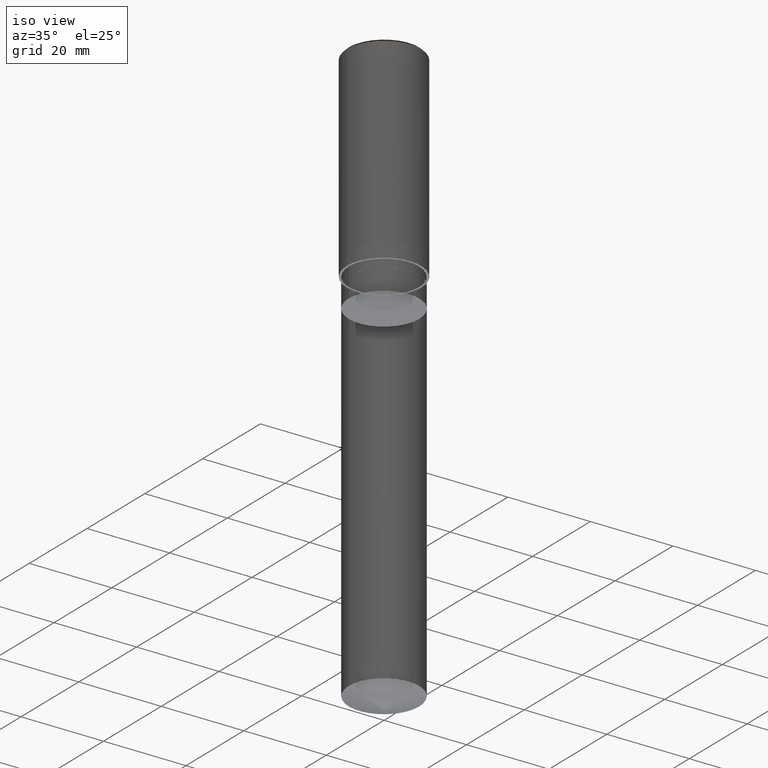
[diagram: clean part render]
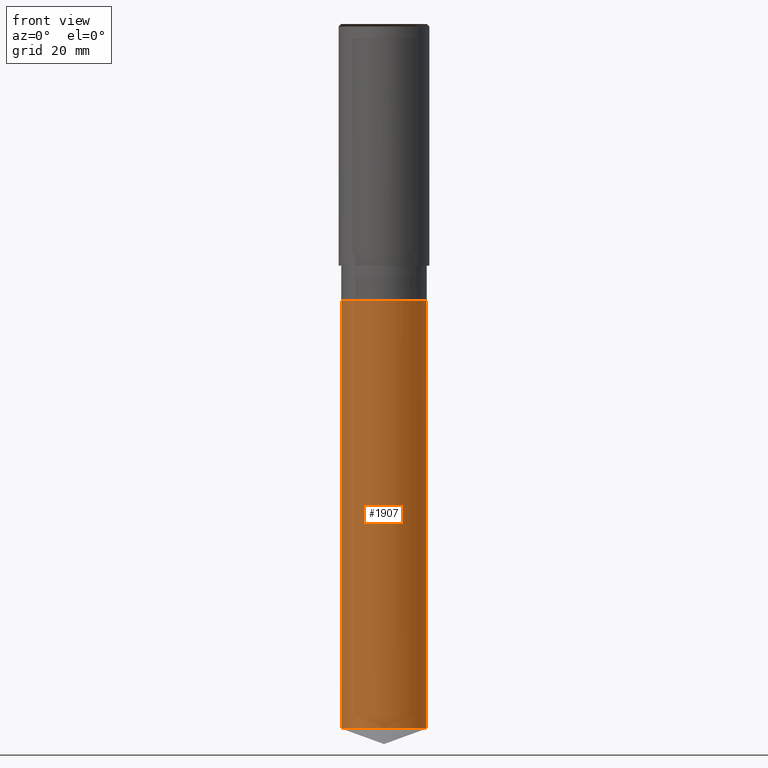
[diagram: tour spotlight — one face highlighted and labeled with its STEP entity id]
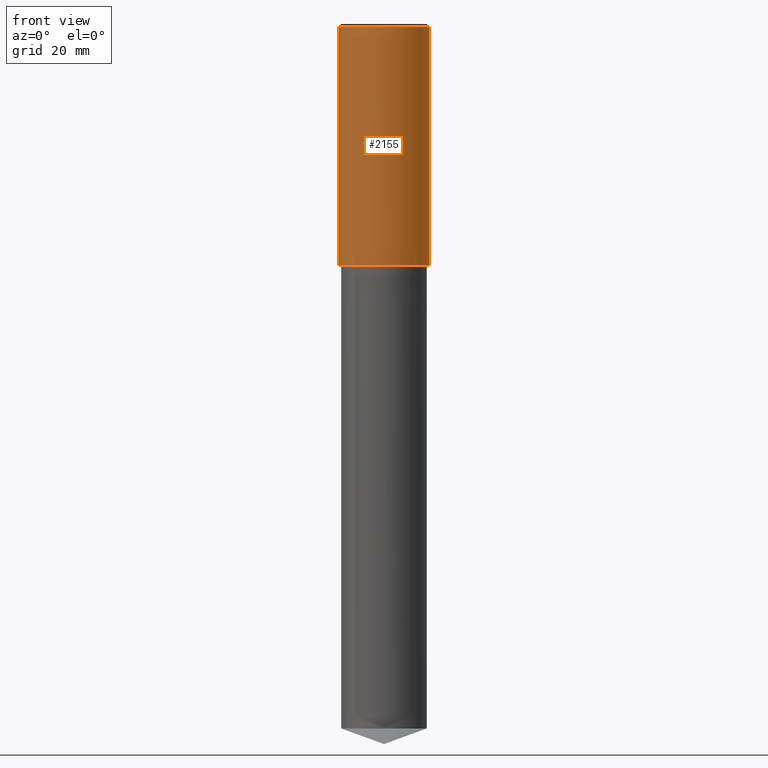
[diagram: tour spotlight — one face highlighted and labeled with its STEP entity id]
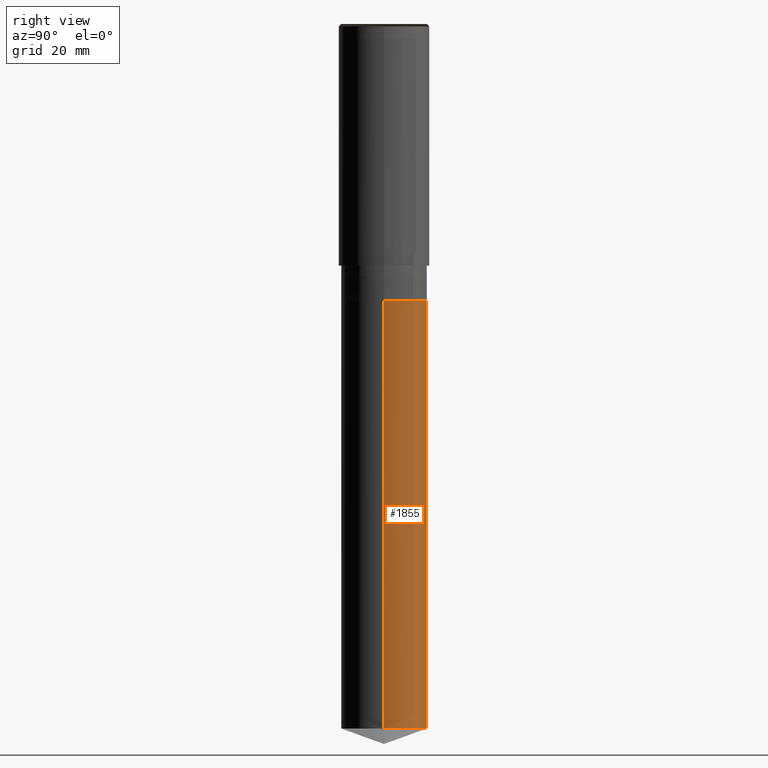
[diagram: tour spotlight — one face highlighted and labeled with its STEP entity id]
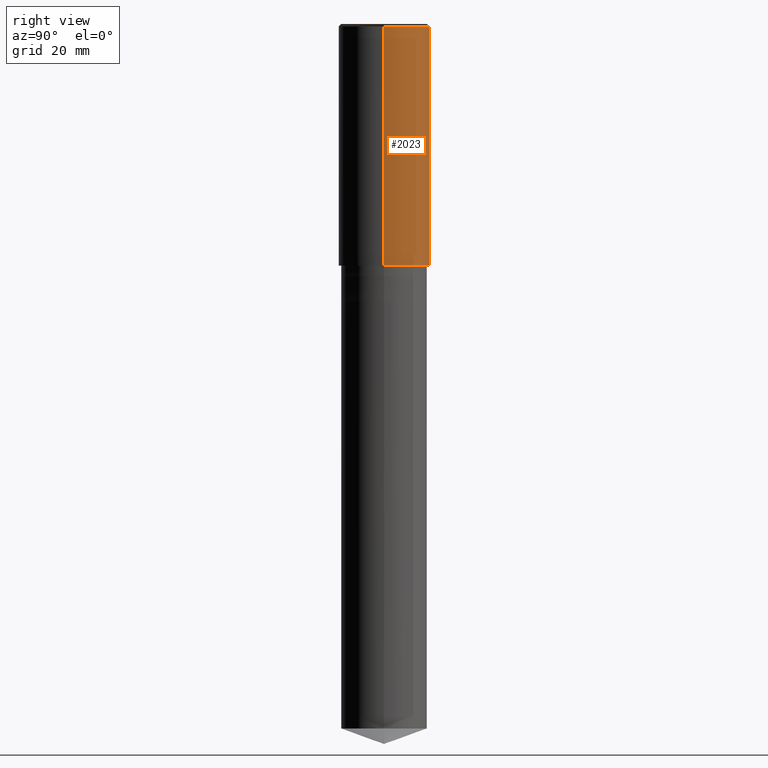
[diagram: tour spotlight — one face highlighted and labeled with its STEP entity id]
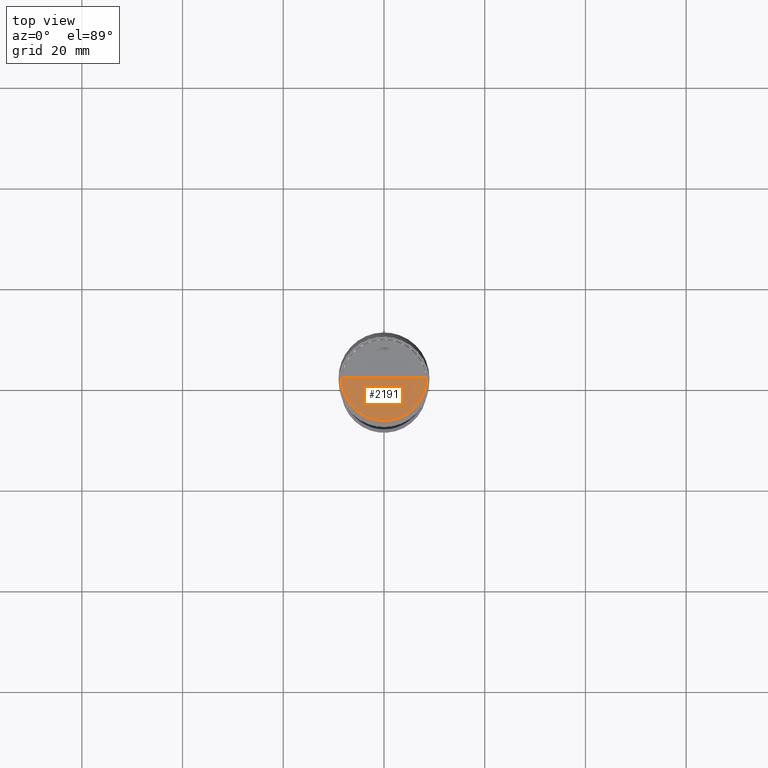
[diagram: tour spotlight — one face highlighted and labeled with its STEP entity id]
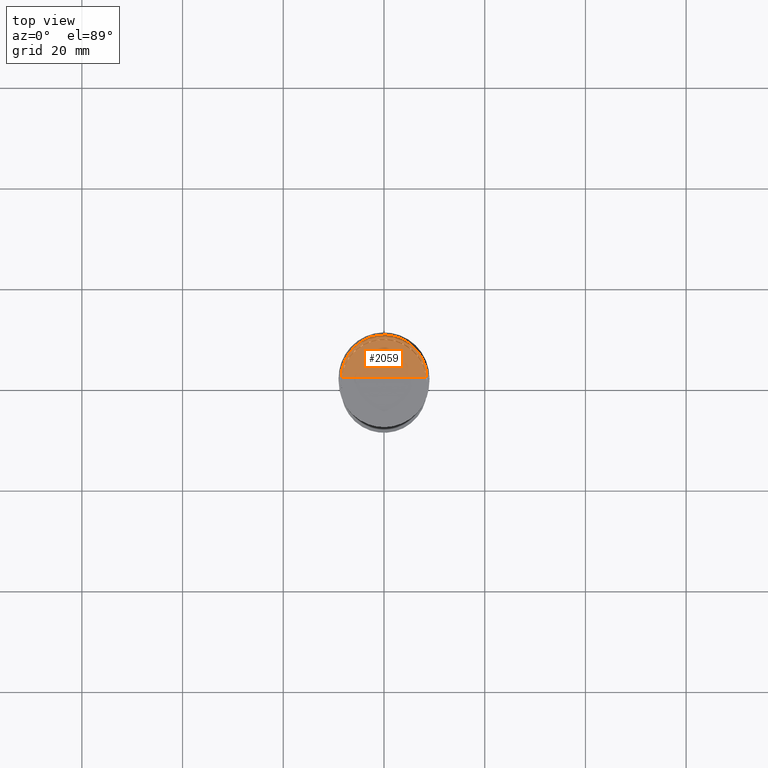
[diagram: tour spotlight — one face highlighted and labeled with its STEP entity id]
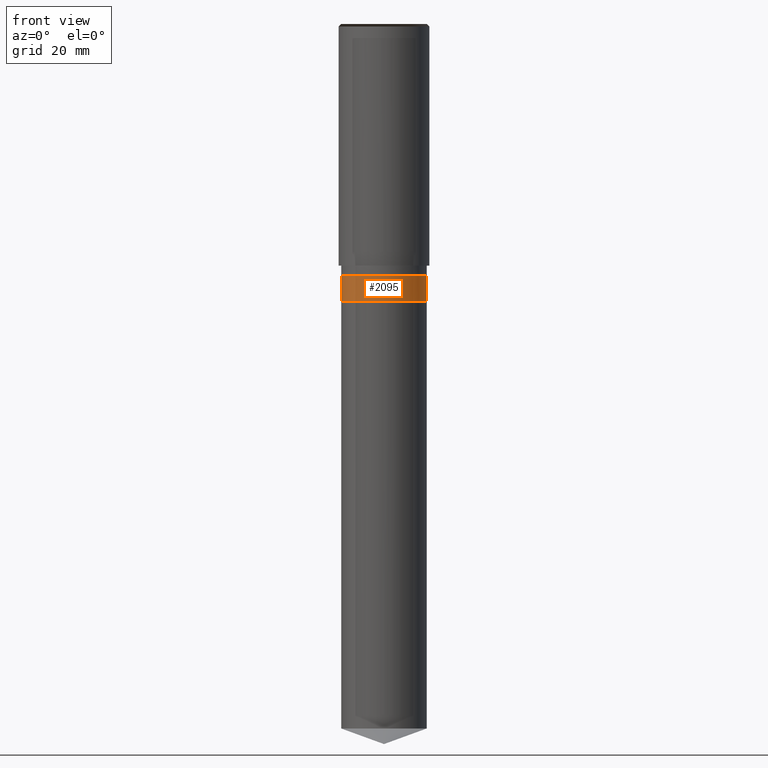
[diagram: tour spotlight — one face highlighted and labeled with its STEP entity id]
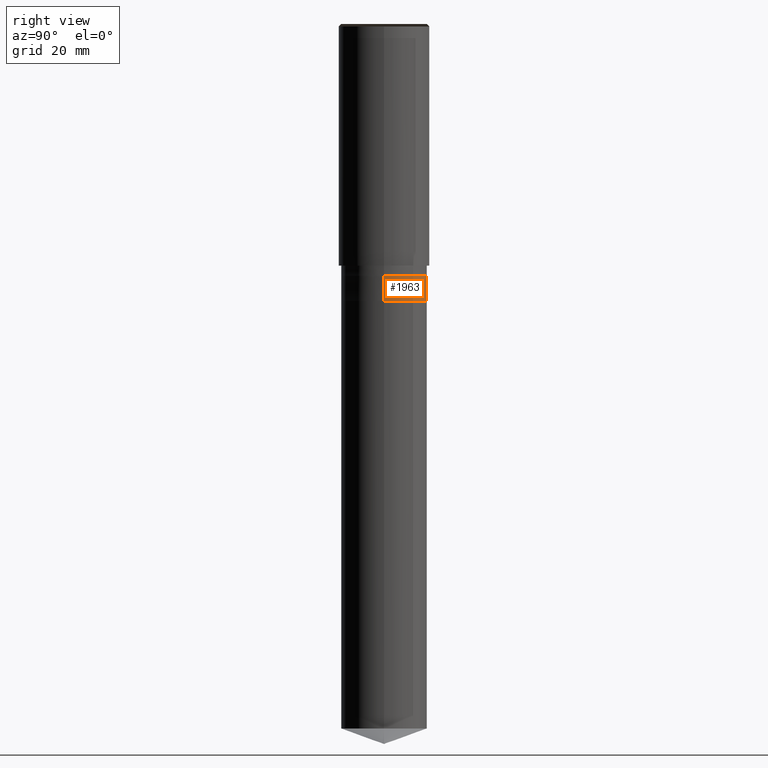
[diagram: tour spotlight — one face highlighted and labeled with its STEP entity id]
A machine part: a face-by-face anatomy tour. The part has 20 B-rep faces; the first image is the clean iso view, then the 8 largest visible faces are spotlighted one at a time (largest first), each with its STEP entity span.

Face 1 — front view, entity #1907. In plain terms, the highlighted face is a freeform B-spline surface patch.
Definition (entity closure, byte-faithful):
#1757=CARTESIAN_POINT('',(8.5,0.0,-91.906253008737));
#1761=CARTESIAN_POINT('',(-8.5,0.0,-91.906253008737));
#1762=CARTESIAN_POINT('',(8.5,0.0,-7.0));
#1766=CARTESIAN_POINT('',(-8.5,0.0,-7.0));
#1768=CARTESIAN_POINT('',(-8.5,-8.5,-91.906253008737));
#1769=CARTESIAN_POINT('',(0.0,-8.5,-91.906253008737));
#1770=CARTESIAN_POINT('',(8.5,-8.5,-91.906253008737));
#1771=CARTESIAN_POINT('',(-8.5,-8.5,-7.0));
#1772=CARTESIAN_POINT('',(0.0,-8.5,-7.0));
#1773=CARTESIAN_POINT('',(8.5,-8.5,-7.0));
#1888=(
BOUNDED_SURFACE()
B_SPLINE_SURFACE(1,2,(
(#1761,#1768,#1769,#1770,#1757),
(#1766,#1771,#1772,#1773,#1762)
), .UNSPECIFIED.,.F.,.F.,.F.)
B_SPLINE_SURFACE_WITH_KNOTS((2,2),(3,2,3),(
0.0,1.0),(
0.0,0.5,1.0), .UNSPECIFIED.)
GEOMETRIC_REPRESENTATION_ITEM()
RATIONAL_B_SPLINE_SURFACE(((1.0,0.707106781187,1.0,0.707106781187,1.0),
(1.0,0.707106781187,1.0,0.707106781187,1.0)
))
REPRESENTATION_ITEM('')
SURFACE()
);
#1889=(
BOUNDED_CURVE()
B_SPLINE_CURVE(2,(#1757,#1770,#1769,#1768,#1761),.UNSPECIFIED.,.F.,.F.)
B_SPLINE_CURVE_WITH_KNOTS((3,2,3),
(0.0,0.5,1.0),.UNSPECIFIED.)
CURVE()
GEOMETRIC_REPRESENTATION_ITEM()
RATIONAL_B_SPLINE_CURVE((1.0,0.707106781187,1.0,0.707106781187,1.0))
REPRESENTATION_ITEM('')
);
#1890=(
BOUNDED_CURVE()
B_SPLINE_CURVE(1,(#1761,#1766),.UNSPECIFIED.,.F.,.F.)
B_SPLINE_CURVE_WITH_KNOTS((2,2),
(0.0,1.0),.UNSPECIFIED.)
CURVE()
GEOMETRIC_REPRESENTATION_ITEM()
RATIONAL_B_SPLINE_CURVE((1.0,1.0))
REPRESENTATION_ITEM('')
);
#1891=(
BOUNDED_CURVE()
B_SPLINE_CURVE(2,(#1766,#1771,#1772,#1773,#1762),.UNSPECIFIED.,.F.,.F.)
B_SPLINE_CURVE_WITH_KNOTS((3,2,3),
(0.0,0.5,1.0),.UNSPECIFIED.)
CURVE()
GEOMETRIC_REPRESENTATION_ITEM()
RATIONAL_B_SPLINE_CURVE((1.0,0.707106781187,1.0,0.707106781187,1.0))
REPRESENTATION_ITEM('')
);
#1892=(
BOUNDED_CURVE()
B_SPLINE_CURVE(1,(#1762,#1757),.UNSPECIFIED.,.F.,.F.)
B_SPLINE_CURVE_WITH_KNOTS((2,2),
(0.0,1.0),.UNSPECIFIED.)
CURVE()
GEOMETRIC_REPRESENTATION_ITEM()
RATIONAL_B_SPLINE_CURVE((1.0,1.0))
REPRESENTATION_ITEM('')
);
#1893=VERTEX_POINT('',#1757);
#1894=VERTEX_POINT('',#1761);
#1895=VERTEX_POINT('',#1762);
#1896=VERTEX_POINT('',#1766);
#1897=EDGE_CURVE('',#1893,#1894,#1889,.T.);
#1898=EDGE_CURVE('',#1894,#1896,#1890,.T.);
#1899=EDGE_CURVE('',#1896,#1895,#1891,.T.);
#1900=EDGE_CURVE('',#1895,#1893,#1892,.T.);
#1901=ORIENTED_EDGE('',*,*,#1897,.T.);
#1902=ORIENTED_EDGE('',*,*,#1898,.T.);
#1903=ORIENTED_EDGE('',*,*,#1899,.T.);
#1904=ORIENTED_EDGE('',*,*,#1900,.T.);
#1905=EDGE_LOOP('',(#1901,#1902,#1903,#1904));
#1906=FACE_OUTER_BOUND('',#1905,.T.);
#1907=ADVANCED_FACE('',(#1906),#1888,.T.);

Face 2 — front view, entity #2155. In plain terms, the highlighted face is a freeform B-spline surface patch.
Definition (entity closure, byte-faithful):
#1784=CARTESIAN_POINT('',(9.0,0.0,0.0));
#1788=CARTESIAN_POINT('',(-9.0,0.0,0.0));
#1789=CARTESIAN_POINT('',(9.0,0.0,47.5));
#1793=CARTESIAN_POINT('',(-9.0,0.0,47.5));
#1806=CARTESIAN_POINT('',(-9.0,-9.0,0.0));
#1807=CARTESIAN_POINT('',(0.0,-9.0,0.0));
#1808=CARTESIAN_POINT('',(9.0,-9.0,0.0));
#1809=CARTESIAN_POINT('',(-9.0,-9.0,47.5));
#1810=CARTESIAN_POINT('',(0.0,-9.0,47.5));
#1811=CARTESIAN_POINT('',(9.0,-9.0,47.5));
#2136=(
BOUNDED_SURFACE()
B_SPLINE_SURFACE(1,2,(
(#1788,#1806,#1807,#1808,#1784),
(#1793,#1809,#1810,#1811,#1789)
), .UNSPECIFIED.,.F.,.F.,.F.)
B_SPLINE_SURFACE_WITH_KNOTS((2,2),(3,2,3),(
0.0,1.0),(
0.0,0.5,1.0), .UNSPECIFIED.)
GEOMETRIC_REPRESENTATION_ITEM()
RATIONAL_B_SPLINE_SURFACE(((1.0,0.707106781187,1.0,0.707106781187,1.0),
(1.0,0.707106781187,1.0,0.707106781187,1.0)
))
REPRESENTATION_ITEM('')
SURFACE()
);
#2137=(
BOUNDED_CURVE()
B_SPLINE_CURVE(2,(#1784,#1808,#1807,#1806,#1788),.UNSPECIFIED.,.F.,.F.)
B_SPLINE_CURVE_WITH_KNOTS((3,2,3),
(0.0,0.5,1.0),.UNSPECIFIED.)
CURVE()
GEOMETRIC_REPRESENTATION_ITEM()
RATIONAL_B_SPLINE_CURVE((1.0,0.707106781187,1.0,0.707106781187,1.0))
REPRESENTATION_ITEM('')
);
#2138=(
BOUNDED_CURVE()
B_SPLINE_CURVE(1,(#1788,#1793),.UNSPECIFIED.,.F.,.F.)
B_SPLINE_CURVE_WITH_KNOTS((2,2),
(0.0,1.0),.UNSPECIFIED.)
CURVE()
GEOMETRIC_REPRESENTATION_ITEM()
RATIONAL_B_SPLINE_CURVE((1.0,1.0))
REPRESENTATION_ITEM('')
);
#2139=(
BOUNDED_CURVE()
B_SPLINE_CURVE(2,(#1793,#1809,#1810,#1811,#1789),.UNSPECIFIED.,.F.,.F.)
B_SPLINE_CURVE_WITH_KNOTS((3,2,3),
(0.0,0.5,1.0),.UNSPECIFIED.)
CURVE()
GEOMETRIC_REPRESENTATION_ITEM()
RATIONAL_B_SPLINE_CURVE((1.0,0.707106781187,1.0,0.707106781187,1.0))
REPRESENTATION_ITEM('')
);
#2140=(
BOUNDED_CURVE()
B_SPLINE_CURVE(1,(#1789,#1784),.UNSPECIFIED.,.F.,.F.)
B_SPLINE_CURVE_WITH_KNOTS((2,2),
(0.0,1.0),.UNSPECIFIED.)
CURVE()
GEOMETRIC_REPRESENTATION_ITEM()
RATIONAL_B_SPLINE_CURVE((1.0,1.0))
REPRESENTATION_ITEM('')
);
#2141=VERTEX_POINT('',#1784);
#2142=VERTEX_POINT('',#1788);
#2143=VERTEX_POINT('',#1789);
#2144=VERTEX_POINT('',#1793);
#2145=EDGE_CURVE('',#2141,#2142,#2137,.T.);
#2146=EDGE_CURVE('',#2142,#2144,#2138,.T.);
#2147=EDGE_CURVE('',#2144,#2143,#2139,.T.);
#2148=EDGE_CURVE('',#2143,#2141,#2140,.T.);
#2149=ORIENTED_EDGE('',*,*,#2145,.T.);
#2150=ORIENTED_EDGE('',*,*,#2146,.T.);
#2151=ORIENTED_EDGE('',*,*,#2147,.T.);
#2152=ORIENTED_EDGE('',*,*,#2148,.T.);
#2153=EDGE_LOOP('',(#2149,#2150,#2151,#2152));
#2154=FACE_OUTER_BOUND('',#2153,.T.);
#2155=ADVANCED_FACE('',(#2154),#2136,.T.);

Face 3 — right view, entity #1855. In plain terms, the highlighted face is a freeform B-spline surface patch.
Definition (entity closure, byte-faithful):
#1757=CARTESIAN_POINT('',(8.5,0.0,-91.906253008737));
#1758=CARTESIAN_POINT('',(8.5,8.5,-91.906253008737));
#1759=CARTESIAN_POINT('',(0.0,8.5,-91.906253008737));
#1760=CARTESIAN_POINT('',(-8.5,8.5,-91.906253008737));
#1761=CARTESIAN_POINT('',(-8.5,0.0,-91.906253008737));
#1762=CARTESIAN_POINT('',(8.5,0.0,-7.0));
#1763=CARTESIAN_POINT('',(8.5,8.5,-7.0));
#1764=CARTESIAN_POINT('',(0.0,8.5,-7.0));
#1765=CARTESIAN_POINT('',(-8.5,8.5,-7.0));
#1766=CARTESIAN_POINT('',(-8.5,0.0,-7.0));
#1836=(
BOUNDED_SURFACE()
B_SPLINE_SURFACE(1,2,(
(#1757,#1758,#1759,#1760,#1761),
(#1762,#1763,#1764,#1765,#1766)
), .UNSPECIFIED.,.F.,.F.,.F.)
B_SPLINE_SURFACE_WITH_KNOTS((2,2),(3,2,3),(
0.0,1.0),(
0.0,0.5,1.0), .UNSPECIFIED.)
GEOMETRIC_REPRESENTATION_ITEM()
RATIONAL_B_SPLINE_SURFACE(((1.0,0.707106781187,1.0,0.707106781187,1.0),
(1.0,0.707106781187,1.0,0.707106781187,1.0)
))
REPRESENTATION_ITEM('')
SURFACE()
);
#1837=(
BOUNDED_CURVE()
B_SPLINE_CURVE(2,(#1761,#1760,#1759,#1758,#1757),.UNSPECIFIED.,.F.,.F.)
B_SPLINE_CURVE_WITH_KNOTS((3,2,3),
(0.0,0.5,1.0),.UNSPECIFIED.)
CURVE()
GEOMETRIC_REPRESENTATION_ITEM()
RATIONAL_B_SPLINE_CURVE((1.0,0.707106781187,1.0,0.707106781187,1.0))
REPRESENTATION_ITEM('')
);
#1838=(
BOUNDED_CURVE()
B_SPLINE_CURVE(1,(#1757,#1762),.UNSPECIFIED.,.F.,.F.)
B_SPLINE_CURVE_WITH_KNOTS((2,2),
(0.0,1.0),.UNSPECIFIED.)
CURVE()
GEOMETRIC_REPRESENTATION_ITEM()
RATIONAL_B_SPLINE_CURVE((1.0,1.0))
REPRESENTATION_ITEM('')
);
#1839=(
BOUNDED_CURVE()
B_SPLINE_CURVE(2,(#1762,#1763,#1764,#1765,#1766),.UNSPECIFIED.,.F.,.F.)
B_SPLINE_CURVE_WITH_KNOTS((3,2,3),
(0.0,0.5,1.0),.UNSPECIFIED.)
CURVE()
GEOMETRIC_REPRESENTATION_ITEM()
RATIONAL_B_SPLINE_CURVE((1.0,0.707106781187,1.0,0.707106781187,1.0))
REPRESENTATION_ITEM('')
);
#1840=(
BOUNDED_CURVE()
B_SPLINE_CURVE(1,(#1766,#1761),.UNSPECIFIED.,.F.,.F.)
B_SPLINE_CURVE_WITH_KNOTS((2,2),
(0.0,1.0),.UNSPECIFIED.)
CURVE()
GEOMETRIC_REPRESENTATION_ITEM()
RATIONAL_B_SPLINE_CURVE((1.0,1.0))
REPRESENTATION_ITEM('')
);
#1841=VERTEX_POINT('',#1757);
#1842=VERTEX_POINT('',#1761);
#1843=VERTEX_POINT('',#1762);
#1844=VERTEX_POINT('',#1766);
#1845=EDGE_CURVE('',#1842,#1841,#1837,.T.);
#1846=EDGE_CURVE('',#1841,#1843,#1838,.T.);
#1847=EDGE_CURVE('',#1843,#1844,#1839,.T.);
#1848=EDGE_CURVE('',#1844,#1842,#1840,.T.);
#1849=ORIENTED_EDGE('',*,*,#1845,.T.);
#1850=ORIENTED_EDGE('',*,*,#1846,.T.);
#1851=ORIENTED_EDGE('',*,*,#1847,.T.);
#1852=ORIENTED_EDGE('',*,*,#1848,.T.);
#1853=EDGE_LOOP('',(#1849,#1850,#1851,#1852));
#1854=FACE_OUTER_BOUND('',#1853,.T.);
#1855=ADVANCED_FACE('',(#1854),#1836,.T.);

Face 4 — right view, entity #2023. In plain terms, the highlighted face is a freeform B-spline surface patch.
Definition (entity closure, byte-faithful):
#1784=CARTESIAN_POINT('',(9.0,0.0,0.0));
#1785=CARTESIAN_POINT('',(9.0,9.0,0.0));
#1786=CARTESIAN_POINT('',(0.0,9.0,0.0));
#1787=CARTESIAN_POINT('',(-9.0,9.0,0.0));
#1788=CARTESIAN_POINT('',(-9.0,0.0,0.0));
#1789=CARTESIAN_POINT('',(9.0,0.0,47.5));
#1790=CARTESIAN_POINT('',(9.0,9.0,47.5));
#1791=CARTESIAN_POINT('',(0.0,9.0,47.5));
#1792=CARTESIAN_POINT('',(-9.0,9.0,47.5));
#1793=CARTESIAN_POINT('',(-9.0,0.0,47.5));
#2004=(
BOUNDED_SURFACE()
B_SPLINE_SURFACE(1,2,(
(#1784,#1785,#1786,#1787,#1788),
(#1789,#1790,#1791,#1792,#1793)
), .UNSPECIFIED.,.F.,.F.,.F.)
B_SPLINE_SURFACE_WITH_KNOTS((2,2),(3,2,3),(
0.0,1.0),(
0.0,0.5,1.0), .UNSPECIFIED.)
GEOMETRIC_REPRESENTATION_ITEM()
RATIONAL_B_SPLINE_SURFACE(((1.0,0.707106781187,1.0,0.707106781187,1.0),
(1.0,0.707106781187,1.0,0.707106781187,1.0)
))
REPRESENTATION_ITEM('')
SURFACE()
);
#2005=(
BOUNDED_CURVE()
B_SPLINE_CURVE(2,(#1788,#1787,#1786,#1785,#1784),.UNSPECIFIED.,.F.,.F.)
B_SPLINE_CURVE_WITH_KNOTS((3,2,3),
(0.0,0.5,1.0),.UNSPECIFIED.)
CURVE()
GEOMETRIC_REPRESENTATION_ITEM()
RATIONAL_B_SPLINE_CURVE((1.0,0.707106781187,1.0,0.707106781187,1.0))
REPRESENTATION_ITEM('')
);
#2006=(
BOUNDED_CURVE()
B_SPLINE_CURVE(1,(#1784,#1789),.UNSPECIFIED.,.F.,.F.)
B_SPLINE_CURVE_WITH_KNOTS((2,2),
(0.0,1.0),.UNSPECIFIED.)
CURVE()
GEOMETRIC_REPRESENTATION_ITEM()
RATIONAL_B_SPLINE_CURVE((1.0,1.0))
REPRESENTATION_ITEM('')
);
#2007=(
BOUNDED_CURVE()
B_SPLINE_CURVE(2,(#1789,#1790,#1791,#1792,#1793),.UNSPECIFIED.,.F.,.F.)
B_SPLINE_CURVE_WITH_KNOTS((3,2,3),
(0.0,0.5,1.0),.UNSPECIFIED.)
CURVE()
GEOMETRIC_REPRESENTATION_ITEM()
RATIONAL_B_SPLINE_CURVE((1.0,0.707106781187,1.0,0.707106781187,1.0))
REPRESENTATION_ITEM('')
);
#2008=(
BOUNDED_CURVE()
B_SPLINE_CURVE(1,(#1793,#1788),.UNSPECIFIED.,.F.,.F.)
B_SPLINE_CURVE_WITH_KNOTS((2,2),
(0.0,1.0),.UNSPECIFIED.)
CURVE()
GEOMETRIC_REPRESENTATION_ITEM()
RATIONAL_B_SPLINE_CURVE((1.0,1.0))
REPRESENTATION_ITEM('')
);
#2009=VERTEX_POINT('',#1784);
#2010=VERTEX_POINT('',#1788);
#2011=VERTEX_POINT('',#1789);
#2012=VERTEX_POINT('',#1793);
#2013=EDGE_CURVE('',#2010,#2009,#2005,.T.);
#2014=EDGE_CURVE('',#2009,#2011,#2006,.T.);
#2015=EDGE_CURVE('',#2011,#2012,#2007,.T.);
#2016=EDGE_CURVE('',#2012,#2010,#2008,.T.);
#2017=ORIENTED_EDGE('',*,*,#2013,.T.);
#2018=ORIENTED_EDGE('',*,*,#2014,.T.);
#2019=ORIENTED_EDGE('',*,*,#2015,.T.);
#2020=ORIENTED_EDGE('',*,*,#2016,.T.);
#2021=EDGE_LOOP('',(#2017,#2018,#2019,#2020));
#2022=FACE_OUTER_BOUND('',#2021,.T.);
#2023=ADVANCED_FACE('',(#2022),#2004,.T.);

Face 5 — top view, entity #2191. In plain terms, the highlighted face is a freeform B-spline surface patch.
Definition (entity closure, byte-faithful):
#1794=CARTESIAN_POINT('',(8.5,0.0,48.0));
#1798=CARTESIAN_POINT('',(-8.5,0.0,48.0));
#1799=CARTESIAN_POINT('',(0.0,0.0,48.0));
#1812=CARTESIAN_POINT('',(-8.5,-8.5,48.0));
#1813=CARTESIAN_POINT('',(0.0,-8.5,48.0));
#1814=CARTESIAN_POINT('',(8.5,-8.5,48.0));
#2176=(
BOUNDED_SURFACE()
B_SPLINE_SURFACE(1,2,(
(#1798,#1812,#1813,#1814,#1794),
(#1799,#1799,#1799,#1799,#1799)
), .UNSPECIFIED.,.F.,.F.,.F.)
B_SPLINE_SURFACE_WITH_KNOTS((2,2),(3,2,3),(
0.0,1.0),(
0.0,0.5,1.0), .UNSPECIFIED.)
GEOMETRIC_REPRESENTATION_ITEM()
RATIONAL_B_SPLINE_SURFACE(((1.0,0.707106781187,1.0,0.707106781187,1.0),
(1.0,0.707106781187,1.0,0.707106781187,1.0)
))
REPRESENTATION_ITEM('')
SURFACE()
);
#2177=(
BOUNDED_CURVE()
B_SPLINE_CURVE(2,(#1794,#1814,#1813,#1812,#1798),.UNSPECIFIED.,.F.,.F.)
B_SPLINE_CURVE_WITH_KNOTS((3,2,3),
(0.0,0.5,1.0),.UNSPECIFIED.)
CURVE()
GEOMETRIC_REPRESENTATION_ITEM()
RATIONAL_B_SPLINE_CURVE((1.0,0.707106781187,1.0,0.707106781187,1.0))
REPRESENTATION_ITEM('')
);
#2178=(
BOUNDED_CURVE()
B_SPLINE_CURVE(1,(#1798,#1799),.UNSPECIFIED.,.F.,.F.)
B_SPLINE_CURVE_WITH_KNOTS((2,2),
(0.0,1.0),.UNSPECIFIED.)
CURVE()
GEOMETRIC_REPRESENTATION_ITEM()
RATIONAL_B_SPLINE_CURVE((1.0,1.0))
REPRESENTATION_ITEM('')
);
#2179=(
BOUNDED_CURVE()
B_SPLINE_CURVE(1,(#1799,#1794),.UNSPECIFIED.,.F.,.F.)
B_SPLINE_CURVE_WITH_KNOTS((2,2),
(0.0,1.0),.UNSPECIFIED.)
CURVE()
GEOMETRIC_REPRESENTATION_ITEM()
RATIONAL_B_SPLINE_CURVE((1.0,1.0))
REPRESENTATION_ITEM('')
);
#2180=VERTEX_POINT('',#1794);
#2181=VERTEX_POINT('',#1798);
#2182=VERTEX_POINT('',#1799);
#2183=EDGE_CURVE('',#2180,#2181,#2177,.T.);
#2184=EDGE_CURVE('',#2181,#2182,#2178,.T.);
#2185=EDGE_CURVE('',#2182,#2180,#2179,.T.);
#2186=ORIENTED_EDGE('',*,*,#2183,.T.);
#2187=ORIENTED_EDGE('',*,*,#2184,.T.);
#2188=ORIENTED_EDGE('',*,*,#2185,.T.);
#2189=EDGE_LOOP('',(#2186,#2187,#2188));
#2190=FACE_OUTER_BOUND('',#2189,.T.);
#2191=ADVANCED_FACE('',(#2190),#2176,.T.);

Face 6 — top view, entity #2059. In plain terms, the highlighted face is a freeform B-spline surface patch.
Definition (entity closure, byte-faithful):
#1794=CARTESIAN_POINT('',(8.5,0.0,48.0));
#1795=CARTESIAN_POINT('',(8.5,8.5,48.0));
#1796=CARTESIAN_POINT('',(0.0,8.5,48.0));
#1797=CARTESIAN_POINT('',(-8.5,8.5,48.0));
#1798=CARTESIAN_POINT('',(-8.5,0.0,48.0));
#1799=CARTESIAN_POINT('',(0.0,0.0,48.0));
#2044=(
BOUNDED_SURFACE()
B_SPLINE_SURFACE(1,2,(
(#1794,#1795,#1796,#1797,#1798),
(#1799,#1799,#1799,#1799,#1799)
), .UNSPECIFIED.,.F.,.F.,.F.)
B_SPLINE_SURFACE_WITH_KNOTS((2,2),(3,2,3),(
0.0,1.0),(
0.0,0.5,1.0), .UNSPECIFIED.)
GEOMETRIC_REPRESENTATION_ITEM()
RATIONAL_B_SPLINE_SURFACE(((1.0,0.707106781187,1.0,0.707106781187,1.0),
(1.0,0.707106781187,1.0,0.707106781187,1.0)
))
REPRESENTATION_ITEM('')
SURFACE()
);
#2045=(
BOUNDED_CURVE()
B_SPLINE_CURVE(2,(#1798,#1797,#1796,#1795,#1794),.UNSPECIFIED.,.F.,.F.)
B_SPLINE_CURVE_WITH_KNOTS((3,2,3),
(0.0,0.5,1.0),.UNSPECIFIED.)
CURVE()
GEOMETRIC_REPRESENTATION_ITEM()
RATIONAL_B_SPLINE_CURVE((1.0,0.707106781187,1.0,0.707106781187,1.0))
REPRESENTATION_ITEM('')
);
#2046=(
BOUNDED_CURVE()
B_SPLINE_CURVE(1,(#1794,#1799),.UNSPECIFIED.,.F.,.F.)
B_SPLINE_CURVE_WITH_KNOTS((2,2),
(0.0,1.0),.UNSPECIFIED.)
CURVE()
GEOMETRIC_REPRESENTATION_ITEM()
RATIONAL_B_SPLINE_CURVE((1.0,1.0))
REPRESENTATION_ITEM('')
);
#2047=(
BOUNDED_CURVE()
B_SPLINE_CURVE(1,(#1799,#1798),.UNSPECIFIED.,.F.,.F.)
B_SPLINE_CURVE_WITH_KNOTS((2,2),
(0.0,1.0),.UNSPECIFIED.)
CURVE()
GEOMETRIC_REPRESENTATION_ITEM()
RATIONAL_B_SPLINE_CURVE((1.0,1.0))
REPRESENTATION_ITEM('')
);
#2048=VERTEX_POINT('',#1794);
#2049=VERTEX_POINT('',#1798);
#2050=VERTEX_POINT('',#1799);
#2051=EDGE_CURVE('',#2049,#2048,#2045,.T.);
#2052=EDGE_CURVE('',#2048,#2050,#2046,.T.);
#2053=EDGE_CURVE('',#2050,#2049,#2047,.T.);
#2054=ORIENTED_EDGE('',*,*,#2051,.T.);
#2055=ORIENTED_EDGE('',*,*,#2052,.T.);
#2056=ORIENTED_EDGE('',*,*,#2053,.T.);
#2057=EDGE_LOOP('',(#2054,#2055,#2056));
#2058=FACE_OUTER_BOUND('',#2057,.T.);
#2059=ADVANCED_FACE('',(#2058),#2044,.T.);

Face 7 — front view, entity #2095. In plain terms, the highlighted face is a freeform B-spline surface patch.
Definition (entity closure, byte-faithful):
#1762=CARTESIAN_POINT('',(8.5,0.0,-7.0));
#1766=CARTESIAN_POINT('',(-8.5,0.0,-7.0));
#1771=CARTESIAN_POINT('',(-8.5,-8.5,-7.0));
#1772=CARTESIAN_POINT('',(0.0,-8.5,-7.0));
#1773=CARTESIAN_POINT('',(8.5,-8.5,-7.0));
#1774=CARTESIAN_POINT('',(8.5,0.0,-2.0));
#1778=CARTESIAN_POINT('',(-8.5,0.0,-2.0));
#1800=CARTESIAN_POINT('',(-8.5,-8.5,-2.0));
#1801=CARTESIAN_POINT('',(0.0,-8.5,-2.0));
#1802=CARTESIAN_POINT('',(8.5,-8.5,-2.0));
#2076=(
BOUNDED_SURFACE()
B_SPLINE_SURFACE(1,2,(
(#1766,#1771,#1772,#1773,#1762),
(#1778,#1800,#1801,#1802,#1774)
), .UNSPECIFIED.,.F.,.F.,.F.)
B_SPLINE_SURFACE_WITH_KNOTS((2,2),(3,2,3),(
0.0,1.0),(
0.0,0.5,1.0), .UNSPECIFIED.)
GEOMETRIC_REPRESENTATION_ITEM()
RATIONAL_B_SPLINE_SURFACE(((1.0,0.707106781187,1.0,0.707106781187,1.0),
(1.0,0.707106781187,1.0,0.707106781187,1.0)
))
REPRESENTATION_ITEM('')
SURFACE()
);
#2077=(
BOUNDED_CURVE()
B_SPLINE_CURVE(2,(#1762,#1773,#1772,#1771,#1766),.UNSPECIFIED.,.F.,.F.)
B_SPLINE_CURVE_WITH_KNOTS((3,2,3),
(0.0,0.5,1.0),.UNSPECIFIED.)
CURVE()
GEOMETRIC_REPRESENTATION_ITEM()
RATIONAL_B_SPLINE_CURVE((1.0,0.707106781187,1.0,0.707106781187,1.0))
REPRESENTATION_ITEM('')
);
#2078=(
BOUNDED_CURVE()
B_SPLINE_CURVE(1,(#1766,#1778),.UNSPECIFIED.,.F.,.F.)
B_SPLINE_CURVE_WITH_KNOTS((2,2),
(0.0,1.0),.UNSPECIFIED.)
CURVE()
GEOMETRIC_REPRESENTATION_ITEM()
RATIONAL_B_SPLINE_CURVE((1.0,1.0))
REPRESENTATION_ITEM('')
);
#2079=(
BOUNDED_CURVE()
B_SPLINE_CURVE(2,(#1778,#1800,#1801,#1802,#1774),.UNSPECIFIED.,.F.,.F.)
B_SPLINE_CURVE_WITH_KNOTS((3,2,3),
(0.0,0.5,1.0),.UNSPECIFIED.)
CURVE()
GEOMETRIC_REPRESENTATION_ITEM()
RATIONAL_B_SPLINE_CURVE((1.0,0.707106781187,1.0,0.707106781187,1.0))
REPRESENTATION_ITEM('')
);
#2080=(
BOUNDED_CURVE()
B_SPLINE_CURVE(1,(#1774,#1762),.UNSPECIFIED.,.F.,.F.)
B_SPLINE_CURVE_WITH_KNOTS((2,2),
(0.0,1.0),.UNSPECIFIED.)
CURVE()
GEOMETRIC_REPRESENTATION_ITEM()
RATIONAL_B_SPLINE_CURVE((1.0,1.0))
REPRESENTATION_ITEM('')
);
#2081=VERTEX_POINT('',#1762);
#2082=VERTEX_POINT('',#1766);
#2083=VERTEX_POINT('',#1774);
#2084=VERTEX_POINT('',#1778);
#2085=EDGE_CURVE('',#2081,#2082,#2077,.T.);
#2086=EDGE_CURVE('',#2082,#2084,#2078,.T.);
#2087=EDGE_CURVE('',#2084,#2083,#2079,.T.);
#2088=EDGE_CURVE('',#2083,#2081,#2080,.T.);
#2089=ORIENTED_EDGE('',*,*,#2085,.T.);
#2090=ORIENTED_EDGE('',*,*,#2086,.T.);
#2091=ORIENTED_EDGE('',*,*,#2087,.T.);
#2092=ORIENTED_EDGE('',*,*,#2088,.T.);
#2093=EDGE_LOOP('',(#2089,#2090,#2091,#2092));
#2094=FACE_OUTER_BOUND('',#2093,.T.);
#2095=ADVANCED_FACE('',(#2094),#2076,.T.);

Face 8 — right view, entity #1963. In plain terms, the highlighted face is a freeform B-spline surface patch.
Definition (entity closure, byte-faithful):
#1762=CARTESIAN_POINT('',(8.5,0.0,-7.0));
#1763=CARTESIAN_POINT('',(8.5,8.5,-7.0));
#1764=CARTESIAN_POINT('',(0.0,8.5,-7.0));
#1765=CARTESIAN_POINT('',(-8.5,8.5,-7.0));
#1766=CARTESIAN_POINT('',(-8.5,0.0,-7.0));
#1774=CARTESIAN_POINT('',(8.5,0.0,-2.0));
#1775=CARTESIAN_POINT('',(8.5,8.5,-2.0));
#1776=CARTESIAN_POINT('',(0.0,8.5,-2.0));
#1777=CARTESIAN_POINT('',(-8.5,8.5,-2.0));
#1778=CARTESIAN_POINT('',(-8.5,0.0,-2.0));
#1944=(
BOUNDED_SURFACE()
B_SPLINE_SURFACE(1,2,(
(#1762,#1763,#1764,#1765,#1766),
(#1774,#1775,#1776,#1777,#1778)
), .UNSPECIFIED.,.F.,.F.,.F.)
B_SPLINE_SURFACE_WITH_KNOTS((2,2),(3,2,3),(
0.0,1.0),(
0.0,0.5,1.0), .UNSPECIFIED.)
GEOMETRIC_REPRESENTATION_ITEM()
RATIONAL_B_SPLINE_SURFACE(((1.0,0.707106781187,1.0,0.707106781187,1.0),
(1.0,0.707106781187,1.0,0.707106781187,1.0)
))
REPRESENTATION_ITEM('')
SURFACE()
);
#1945=(
BOUNDED_CURVE()
B_SPLINE_CURVE(2,(#1766,#1765,#1764,#1763,#1762),.UNSPECIFIED.,.F.,.F.)
B_SPLINE_CURVE_WITH_KNOTS((3,2,3),
(0.0,0.5,1.0),.UNSPECIFIED.)
CURVE()
GEOMETRIC_REPRESENTATION_ITEM()
RATIONAL_B_SPLINE_CURVE((1.0,0.707106781187,1.0,0.707106781187,1.0))
REPRESENTATION_ITEM('')
);
#1946=(
BOUNDED_CURVE()
B_SPLINE_CURVE(1,(#1762,#1774),.UNSPECIFIED.,.F.,.F.)
B_SPLINE_CURVE_WITH_KNOTS((2,2),
(0.0,1.0),.UNSPECIFIED.)
CURVE()
GEOMETRIC_REPRESENTATION_ITEM()
RATIONAL_B_SPLINE_CURVE((1.0,1.0))
REPRESENTATION_ITEM('')
);
#1947=(
BOUNDED_CURVE()
B_SPLINE_CURVE(2,(#1774,#1775,#1776,#1777,#1778),.UNSPECIFIED.,.F.,.F.)
B_SPLINE_CURVE_WITH_KNOTS((3,2,3),
(0.0,0.5,1.0),.UNSPECIFIED.)
CURVE()
GEOMETRIC_REPRESENTATION_ITEM()
RATIONAL_B_SPLINE_CURVE((1.0,0.707106781187,1.0,0.707106781187,1.0))
REPRESENTATION_ITEM('')
);
#1948=(
BOUNDED_CURVE()
B_SPLINE_CURVE(1,(#1778,#1766),.UNSPECIFIED.,.F.,.F.)
B_SPLINE_CURVE_WITH_KNOTS((2,2),
(0.0,1.0),.UNSPECIFIED.)
CURVE()
GEOMETRIC_REPRESENTATION_ITEM()
RATIONAL_B_SPLINE_CURVE((1.0,1.0))
REPRESENTATION_ITEM('')
);
#1949=VERTEX_POINT('',#1762);
#1950=VERTEX_POINT('',#1766);
#1951=VERTEX_POINT('',#1774);
#1952=VERTEX_POINT('',#1778);
#1953=EDGE_CURVE('',#1950,#1949,#1945,.T.);
#1954=EDGE_CURVE('',#1949,#1951,#1946,.T.);
#1955=EDGE_CURVE('',#1951,#1952,#1947,.T.);
#1956=EDGE_CURVE('',#1952,#1950,#1948,.T.);
#1957=ORIENTED_EDGE('',*,*,#1953,.T.);
#1958=ORIENTED_EDGE('',*,*,#1954,.T.);
#1959=ORIENTED_EDGE('',*,*,#1955,.T.);
#1960=ORIENTED_EDGE('',*,*,#1956,.T.);
#1961=EDGE_LOOP('',(#1957,#1958,#1959,#1960));
#1962=FACE_OUTER_BOUND('',#1961,.T.);
#1963=ADVANCED_FACE('',(#1962),#1944,.T.);